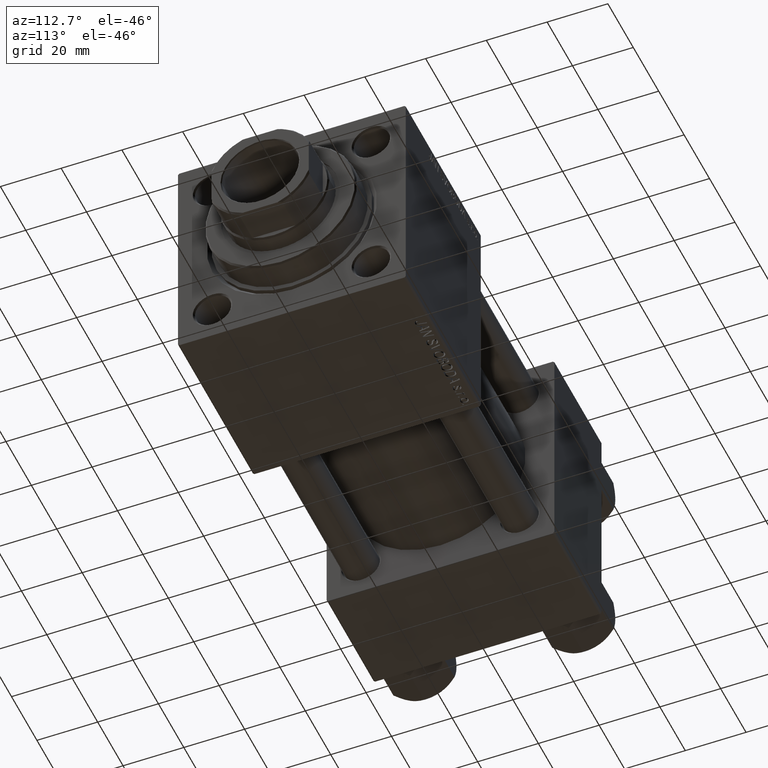
[diagram: clean part render]
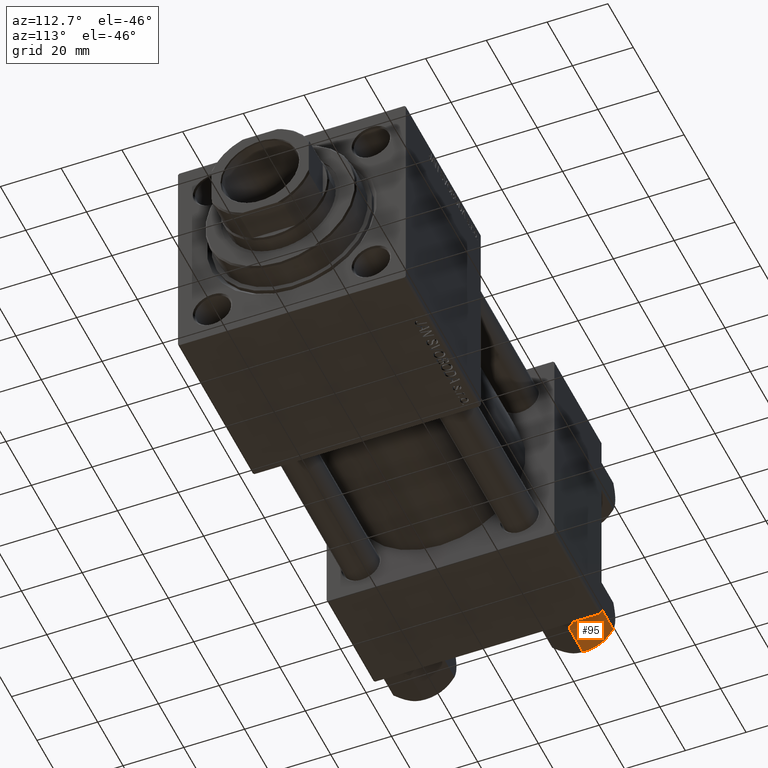
[diagram: same view with one face highlighted and labeled with its STEP entity id]
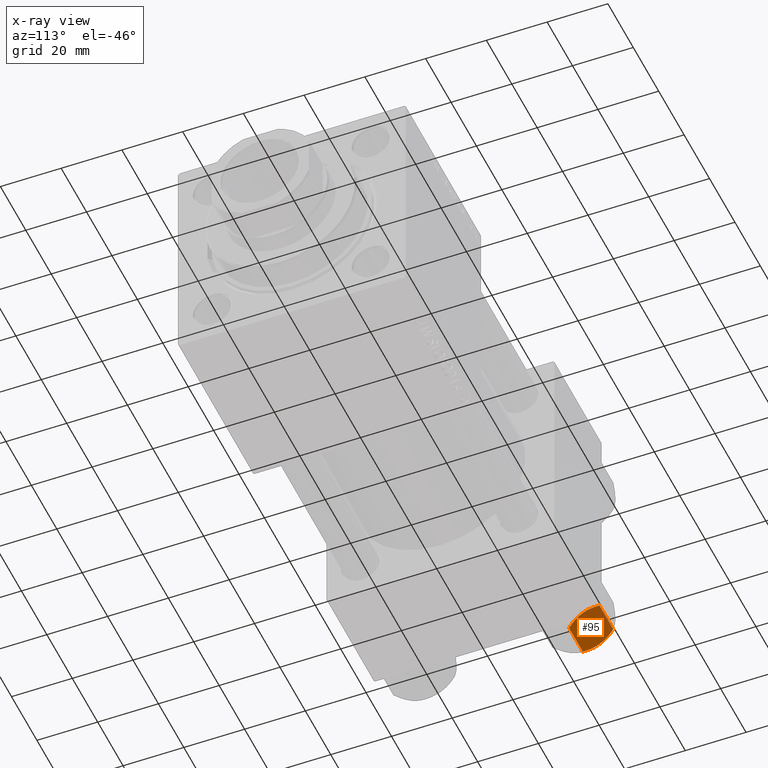
[diagram: x-ray of the same camera — body ghosted, the highlighted face saturated]
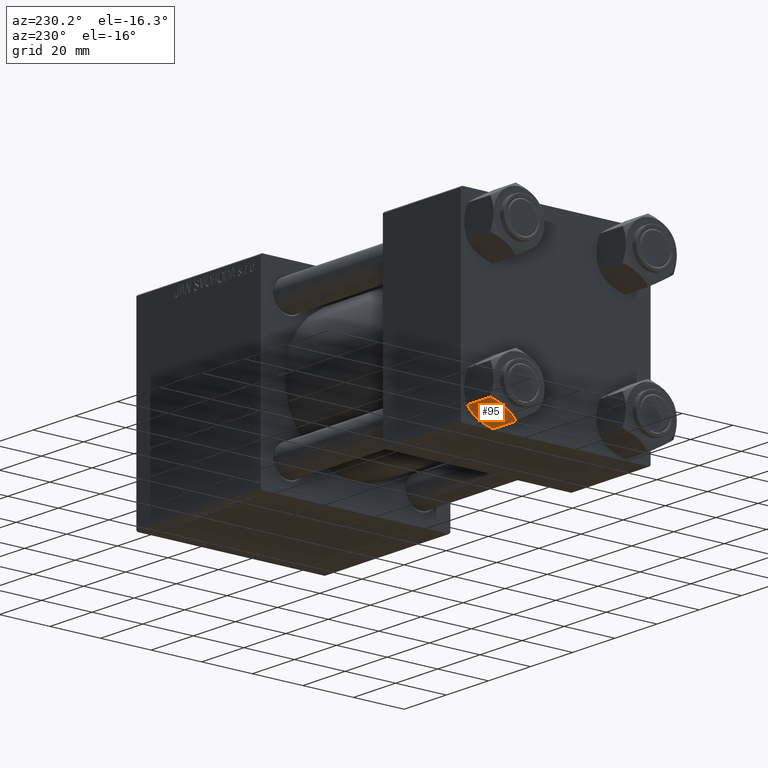
[diagram: same view with one face highlighted and labeled with its STEP entity id]
A machine part, auxiliary view. The second image highlights one B-rep face of the part: STEP entity #95.
The next image is the same camera in x-ray: the body ghosted, the highlighted face saturated — about 0% of this face is hidden behind the body in this view.
A second angle (auxiliary view) of the same face is appended — the face is thin or edge-on in the first view.
In plain terms, the highlighted planar face has unit normal (0, -0.5, 0.866).
Its self-contained STEP definition (entity closure, byte-faithful):
#95 = ADVANCED_FACE ( 'NONE', ( #42880 ), #8087, .F. ) ;
#1669 = CARTESIAN_POINT ( 'NONE',  ( -8.460569896449618099, 5.472293462311865753, 3.939644352451667145E-15 ) ) ;
#1869 = DIRECTION ( 'NONE',  ( -0.000000000000000000, -0.000000000000000000, 1.000000000000000000 ) ) ;
#2728 = B_SPLINE_CURVE_WITH_KNOTS ( 'NONE', 3,
 ( #27646, #31964, #19768, #43882, #4533, #47681, #46671, #20537 ),
 .UNSPECIFIED., .F., .F.,
 ( 4, 2, 2, 4 ),
 ( 2.544312114905218436E-07, 0.003011550106433537755, 0.004517197944044560980, 0.006022845781655582903 ),
 .UNSPECIFIED. ) ;
#2858 = VERTEX_POINT ( 'NONE', #9957 ) ;
#4380 = ORIENTED_EDGE ( 'NONE', *, *, #44015, .T. ) ;
#4533 = CARTESIAN_POINT ( 'NONE',  ( -9.729165168613649328, 3.275021996682086822, -13.80960203119265906 ) ) ;
#5190 = CARTESIAN_POINT ( 'NONE',  ( -10.69662495661650148, 1.599332489581337668, -0.7114554706434472742 ) ) ;
#6457 = VERTEX_POINT ( 'NONE', #41274 ) ;
#7927 = CARTESIAN_POINT ( 'NONE',  ( -5.809999999999997833, 10.06321519197518022, -12.44321519197518455 ) ) ;
#8087 = PLANE ( 'NONE',  #12565 ) ;
#8476 = LINE ( 'NONE', #34653, #13780 ) ;
#8515 = EDGE_LOOP ( 'NONE', ( #12254, #4380, #15575, #32130, #29017, #30263 ) ) ;
#8997 = CARTESIAN_POINT ( 'NONE',  ( -9.220295946303428636, 4.156409344131455796, 3.796401669593772542E-15 ) ) ;
#9791 = B_SPLINE_CURVE_WITH_KNOTS ( 'NONE', 3,
 ( #28836, #33141, #47617, #13581, #35967, #36458, #1669, #48605 ),
 .UNSPECIFIED., .F., .F.,
 ( 4, 2, 2, 4 ),
 ( 2.544312114902182352E-07, 0.003011550106433540791, 0.004517197944044565316, 0.006022845781655589842 ),
 .UNSPECIFIED. ) ;
#9957 = CARTESIAN_POINT ( 'NONE',  ( -8.715000000000003411, 5.031607595987592774, 0.000000000000000000 ) ) ;
#9983 = CARTESIAN_POINT ( 'NONE',  ( -11.61999999999999922, 6.270720075409452187E-15, -1.556784808024810562 ) ) ;
#10736 = VERTEX_POINT ( 'NONE', #35910 ) ;
#11151 = CARTESIAN_POINT ( 'NONE',  ( -5.809999999999997833, 10.06321519197518022, -12.44321519197518455 ) ) ;
#11492 = CARTESIAN_POINT ( 'NONE',  ( -6.265018354709776638, 9.275100283241455301, -12.89823354668505218 ) ) ;
#12254 = ORIENTED_EDGE ( 'NONE', *, *, #37616, .F. ) ;
#12565 = AXIS2_PLACEMENT_3D ( 'NONE', #27655, #25583, #37014 ) ;
#13581 = CARTESIAN_POINT ( 'NONE',  ( -7.455303369716805406, 7.213466161761384221, -0.3002673809867362764 ) ) ;
#13780 = VECTOR ( 'NONE', #23468, 1000.000000000000000 ) ;
#14001 = VECTOR ( 'NONE', #1869, 1000.000000000000000 ) ;
#15575 = ORIENTED_EDGE ( 'NONE', *, *, #17558, .F. ) ;
#16220 = B_SPLINE_CURVE_WITH_KNOTS ( 'NONE', 3,
 ( #44526, #17605, #31049, #30794, #11492, #7927 ),
 .UNSPECIFIED., .F., .F.,
 ( 4, 2, 4 ),
 ( 0.006022845781655582903, 0.009013049135303629819, 0.01200325248895167847 ),
 .UNSPECIFIED. ) ;
#17532 = VERTEX_POINT ( 'NONE', #24500 ) ;
#17558 = EDGE_CURVE ( 'NONE', #2858, #17532, #35589, .T. ) ;
#17605 = CARTESIAN_POINT ( 'NONE',  ( -8.209704053696567527, 5.906805847843725310, -14.00000000000000533 ) ) ;
#18764 = VERTEX_POINT ( 'NONE', #21993 ) ;
#19768 = CARTESIAN_POINT ( 'NONE',  ( -10.69859855102501101, 1.595914123792268491, -13.28585617404753627 ) ) ;
#20537 = CARTESIAN_POINT ( 'NONE',  ( -8.715000000000001634, 5.031607595987591885, -14.00000000000000000 ) ) ;
#20690 = CARTESIAN_POINT ( 'NONE',  ( -11.16498164529022219, 0.7881149087337359083, -1.101766453314949379 ) ) ;
#21166 = LINE ( 'NONE', #36659, #14001 ) ;
#21993 = CARTESIAN_POINT ( 'NONE',  ( -5.809999999999997833, 10.06321519197518022, -1.556784808024814115 ) ) ;
#23468 = DIRECTION ( 'NONE',  ( -0.000000000000000000, -0.000000000000000000, 1.000000000000000000 ) ) ;
#24500 = CARTESIAN_POINT ( 'NONE',  ( -11.61999999999999922, 6.270720075409452187E-15, -1.556784808024810562 ) ) ;
#25583 = DIRECTION ( 'NONE',  ( 0.8660254037844385966, -0.5000000000000002220, 0.000000000000000000 ) ) ;
#27646 = CARTESIAN_POINT ( 'NONE',  ( -11.61999999999999922, 6.270720075510426383E-15, -12.44321519197518811 ) ) ;
#27655 = CARTESIAN_POINT ( 'NONE',  ( -11.61999999999999922, 6.288644352490894150E-15, -14.00000000000000000 ) ) ;
#28308 = CARTESIAN_POINT ( 'NONE',  ( -8.715000000000003411, 5.031607595987592774, 0.000000000000000000 ) ) ;
#28836 = CARTESIAN_POINT ( 'NONE',  ( -5.809999999999997833, 10.06321519197518022, -1.556784808024814115 ) ) ;
#29017 = ORIENTED_EDGE ( 'NONE', *, *, #33534, .F. ) ;
#30263 = ORIENTED_EDGE ( 'NONE', *, *, #35167, .F. ) ;
#30794 = CARTESIAN_POINT ( 'NONE',  ( -6.733375043383492020, 8.463882702393842550, -13.28854452935654962 ) ) ;
#30935 = EDGE_CURVE ( 'NONE', #18764, #2858, #9791, .T. ) ;
#31049 = CARTESIAN_POINT ( 'NONE',  ( -7.713000053756302599, 6.767122412062954062, -13.84547602999601601 ) ) ;
#31964 = CARTESIAN_POINT ( 'NONE',  ( -11.16445427487471598, 0.7890283410878030645, -12.89876091710047312 ) ) ;
#32130 = ORIENTED_EDGE ( 'NONE', *, *, #30935, .F. ) ;
#32976 = VERTEX_POINT ( 'NONE', #11151 ) ;
#33141 = CARTESIAN_POINT ( 'NONE',  ( -6.265545725125282850, 9.274186850887385702, -1.101239082899533539 ) ) ;
#33534 = EDGE_CURVE ( 'NONE', #32976, #18764, #8476, .T. ) ;
#34653 = CARTESIAN_POINT ( 'NONE',  ( -5.809999999999997833, 10.06321519197518022, -14.00000000000000000 ) ) ;
#35167 = EDGE_CURVE ( 'NONE', #10736, #32976, #16220, .T. ) ;
#35589 = B_SPLINE_CURVE_WITH_KNOTS ( 'NONE', 3,
 ( #28308, #8997, #39990, #5190, #20690, #9983 ),
 .UNSPECIFIED., .F., .F.,
 ( 4, 2, 4 ),
 ( 0.006022845781655589842, 0.009013049135303633289, 0.01200325248895167674 ),
 .UNSPECIFIED. ) ;
#35910 = CARTESIAN_POINT ( 'NONE',  ( -8.715000000000001634, 5.031607595987591885, -14.00000000000000000 ) ) ;
#35967 = CARTESIAN_POINT ( 'NONE',  ( -7.700834831386344170, 6.788193195293096949, -0.1903979688073401122 ) ) ;
#36458 = CARTESIAN_POINT ( 'NONE',  ( -8.202333004087897450, 5.919572880271055659, -0.03994118060690620559 ) ) ;
#36659 = CARTESIAN_POINT ( 'NONE',  ( -11.61999999999999922, 6.288644352490894150E-15, -14.00000000000000000 ) ) ;
#37014 = DIRECTION ( 'NONE',  ( 0.5000000000000001110, 0.8660254037844384856, 0.000000000000000000 ) ) ;
#37616 = EDGE_CURVE ( 'NONE', #6457, #10736, #2728, .T. ) ;
#39990 = CARTESIAN_POINT ( 'NONE',  ( -9.716999946243694453, 3.296092779912229265, -0.1545239700039824915 ) ) ;
#41274 = CARTESIAN_POINT ( 'NONE',  ( -11.61999999999999922, 6.270720075510426383E-15, -12.44321519197518811 ) ) ;
#42880 = FACE_OUTER_BOUND ( 'NONE', #8515, .T. ) ;
#43882 = CARTESIAN_POINT ( 'NONE',  ( -9.974696630283190757, 2.849749030213795109, -13.69973261901325934 ) ) ;
#44015 = EDGE_CURVE ( 'NONE', #6457, #17532, #21166, .T. ) ;
#44526 = CARTESIAN_POINT ( 'NONE',  ( -8.715000000000001634, 5.031607595987591885, -14.00000000000000000 ) ) ;
#46671 = CARTESIAN_POINT ( 'NONE',  ( -8.969430103550378064, 4.590921729663314466, -14.00000000000000178 ) ) ;
#47617 = CARTESIAN_POINT ( 'NONE',  ( -6.731401448974986934, 8.467301068182916168, -0.7141438259524646170 ) ) ;
#47681 = CARTESIAN_POINT ( 'NONE',  ( -9.227666995912096937, 4.143642311704127223, -13.96005881939308857 ) ) ;
#48605 = CARTESIAN_POINT ( 'NONE',  ( -8.715000000000003411, 5.031607595987592774, 0.000000000000000000 ) ) ;